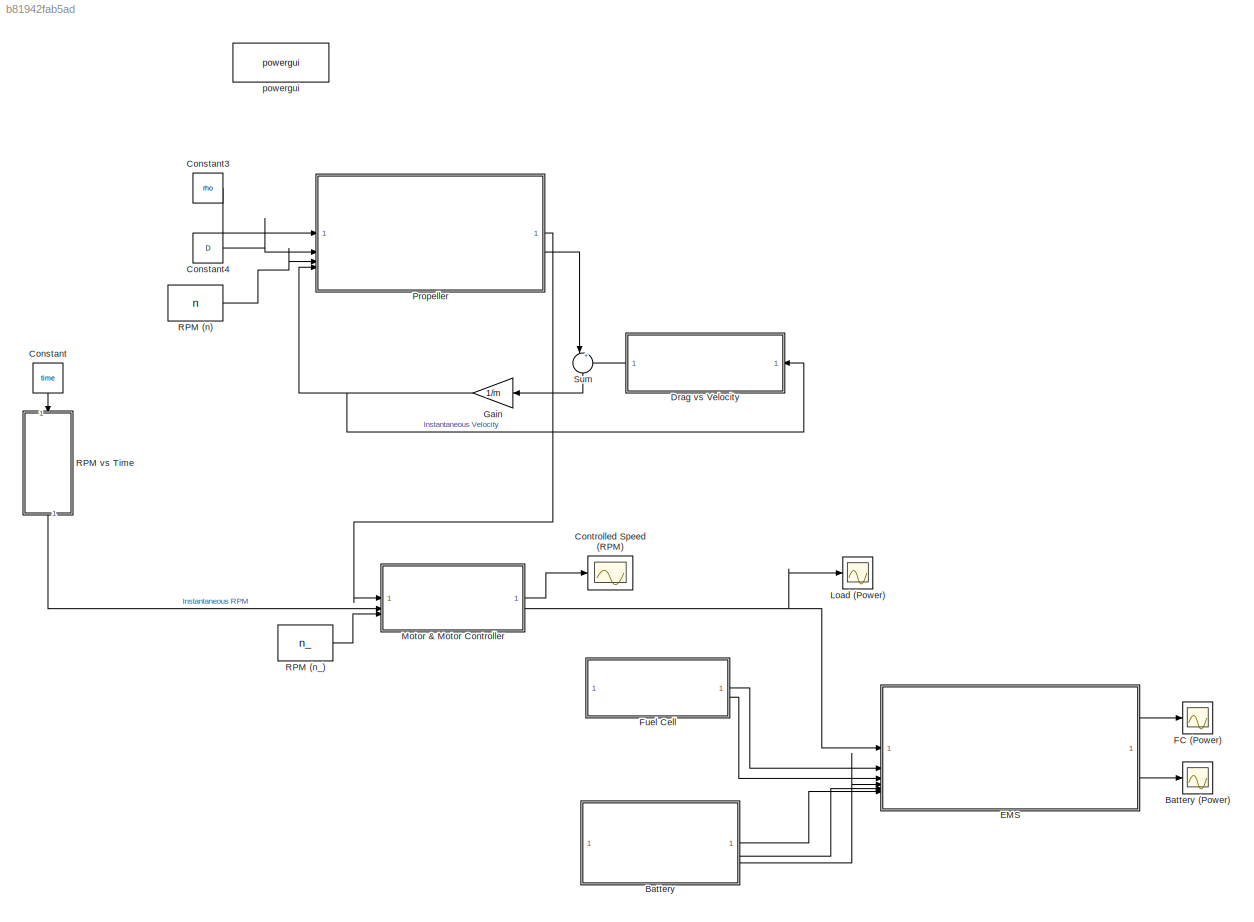
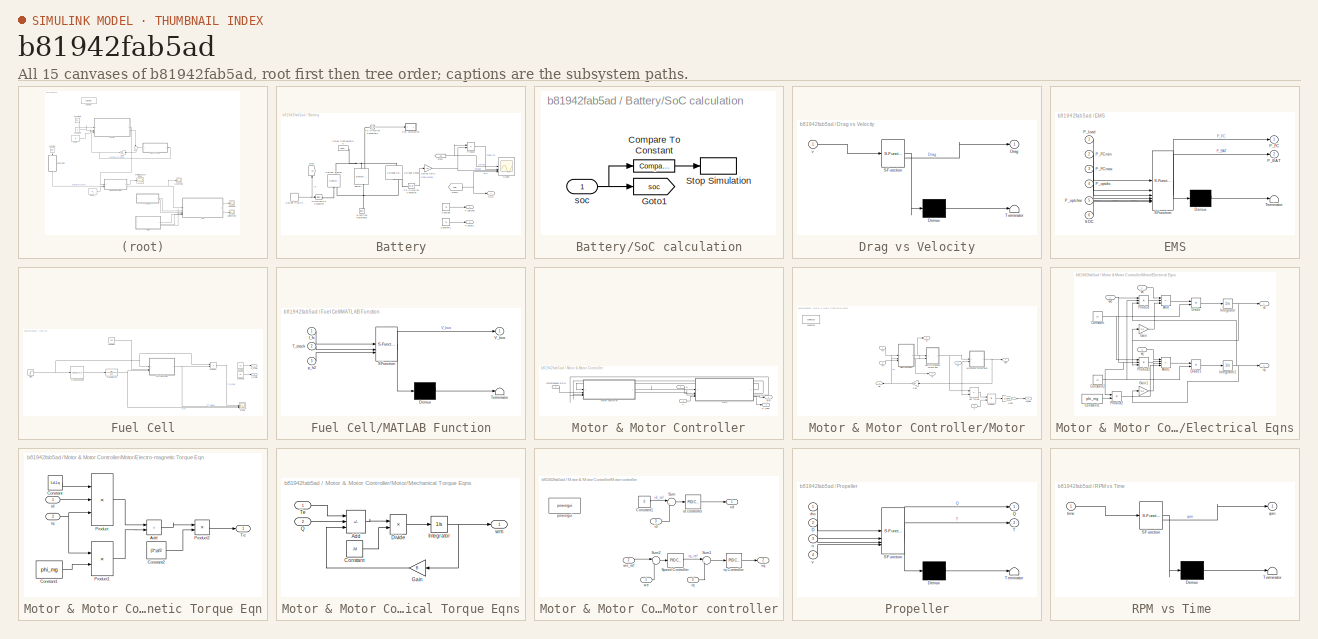
[diagram: thumbnail index - all 15 canvases of the model, root first then tree order]
MODEL slx_b81942fab5ad
KIND model
CONFIG AbsTol = auto
CONFIG EnableMultiTasking = off
CONFIG FixedStep = auto
CONFIG MaxStep = auto
CONFIG MinStep = auto
CONFIG RelTol = 1e-3
CONFIG SampleTimeConstraint = Unconstrained
CONFIG SolverName = VariableStepAuto
CONFIG StartTime = 0.0
CONFIG StopTime = 100
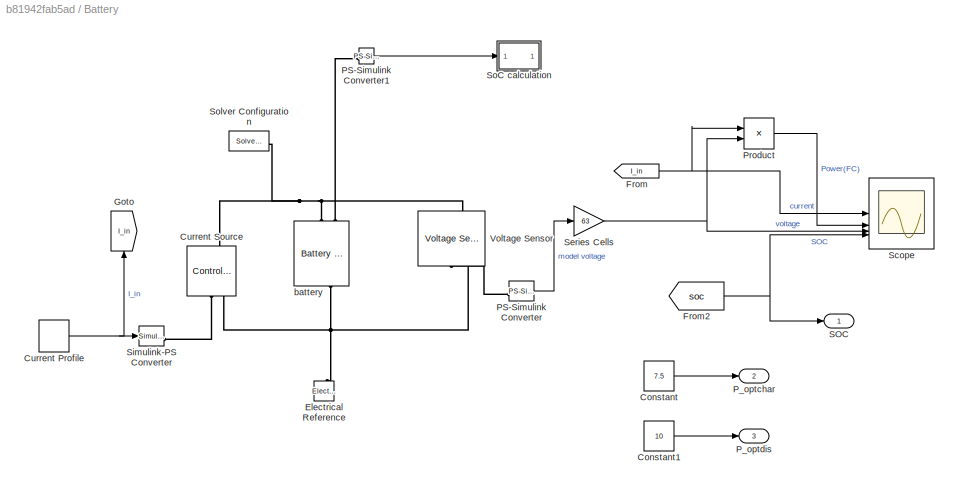
BLOCK [SubSystem] Battery
BLOCK [Scope] Battery (Power)
  Floating = off
  NumInputPorts = 1
  ScopeSpecificationString = Simulink.scopes.TimeScopeBlockCfg('CurrentConfiguration', extmgr.ConfigurationSet(extmgr.Configuration('Core','General UI',true),extmgr.Configuration('Core','Source UI',true),extmgr.Configuration('Sources','WiredSimulink',true,'DataLoggingVariableName','ScopeData2'),extmgr.Configuration('Visuals','Time Domain',true,'SerializedDisplays',{struct('MinYLimReal','-126833.70267','MaxYLimReal','1141763.3...<+2412ch>
BLOCK [Constant] Battery/Constant
  Value = 7.5
BLOCK [Constant] Battery/Constant1
  Value = 10
BLOCK [DiscretePulseGenerator] Battery/Current Profile
  Amplitude = -30
  Period = 20
  PhaseDelay = 10
  PulseType = Time based
  PulseWidth = 30
BLOCK [Reference] Battery/Current Source  REF=fl_lib/Electrical/Electrical Sources/Controlled Current
Source
  NameLocation = left
  SourceBlock = fl_lib/Electrical/Electrical Sources/Controlled Current\nSource
  SourceType = Controlled Current\nSource
BLOCK [Reference] Battery/Electrical Reference  REF=fl_lib/Electrical/Electrical Elements/Electrical Reference
  NameLocation = right
  SourceBlock = fl_lib/Electrical/Electrical Elements/Electrical Reference
  SourceType = Electrical Reference
BLOCK [From] Battery/From
  GotoTag = I_in
BLOCK [From] Battery/From2
  GotoTag = soc
  TagVisibility = global
BLOCK [Goto] Battery/Goto
  GotoTag = I_in
  NameLocation = right
BLOCK [Reference] Battery/PS-Simulink Converter  REF=nesl_utility/PS-Simulink
Converter
  SourceBlock = nesl_utility/PS-Simulink\nConverter
  SourceType = PS-Simulink\nConverter
BLOCK [Reference] Battery/PS-Simulink Converter1  REF=nesl_utility/PS-Simulink
Converter
  SourceBlock = nesl_utility/PS-Simulink\nConverter
  SourceType = PS-Simulink\nConverter
BLOCK [Outport] Battery/P_optchar
  Port = 2
BLOCK [Outport] Battery/P_optdis
  Port = 3
BLOCK [Product] Battery/Product
BLOCK [Outport] Battery/SOC
BLOCK [Scope] Battery/Scope
  Floating = off
  NumInputPorts = 4
  ScopeSpecificationString = Simulink.scopes.TimeScopeBlockCfg('CurrentConfiguration', extmgr.ConfigurationSet(extmgr.Configuration('Core','General UI',true),extmgr.Configuration('Core','Source UI',true),extmgr.Configuration('Sources','WiredSimulink',true,'DataLoggingVariableName','ScopeData1'),extmgr.Configuration('Visuals','Time Domain',true,'SerializedDisplays',{struct('MinYLimReal','-33.75','MaxYLimReal','3.75','YLabelRea...<+2699ch>
BLOCK [Gain] Battery/Series Cells
  Gain = 63
BLOCK [Reference] Battery/Simulink-PS Converter  REF=nesl_utility/Simulink-PS
Converter
  SourceBlock = nesl_utility/Simulink-PS\nConverter
  SourceType = Simulink-PS\nConverter
BLOCK [SubSystem] Battery/SoC calculation
BLOCK [Reference] Battery/SoC calculation/Compare To Constant  REF=simulink/Logic and Bit
Operations/Compare
To Constant
  SourceBlock = simulink/Logic and Bit\nOperations/Compare\nTo Constant
  SourceType = Compare To Constant
BLOCK [Goto] Battery/SoC calculation/Goto1
  GotoTag = soc
  TagVisibility = global
BLOCK [Stop] Battery/SoC calculation/Stop Simulation
BLOCK [Inport] Battery/SoC calculation/soc
BLOCK [Reference] Battery/Solver Configuration  REF=nesl_utility/Solver
Configuration
  SourceBlock = nesl_utility/Solver\nConfiguration
  SourceType = Solver\nConfiguration
BLOCK [Reference] Battery/Voltage Sensor  REF=fl_lib/Electrical/Electrical Sensors/Voltage Sensor
  NameLocation = right
  SourceBlock = fl_lib/Electrical/Electrical Sensors/Voltage Sensor
  SourceType = Voltage Sensor
BLOCK [Reference] Battery/battery  REF=batteryecm_lib/Battery
(Table-Based)
  LibrarySourceBlock = ee_lib/Sources/Battery\n(Table-Based)
  NameLocation = left
  SourceBlock = batteryecm_lib/Battery\n(Table-Based)
  SourceType = Battery\n(Table-Based)
BLOCK [Constant] Constant
  NameLocation = left
  Value = time
BLOCK [Constant] Constant3
  Value = rho
BLOCK [Constant] Constant4
  Value = D
BLOCK [Scope] Controlled Speed (RPM)
  Floating = off
  NumInputPorts = 1
  ScopeSpecificationString = Simulink.scopes.TimeScopeBlockCfg('CurrentConfiguration', extmgr.ConfigurationSet(extmgr.Configuration('Core','General UI',true),extmgr.Configuration('Core','Source UI',true),extmgr.Configuration('Sources','WiredSimulink',true),extmgr.Configuration('Visuals','Time Domain',true,'SerializedDisplays',{struct('MinYLimReal','-24777363182.60897','MaxYLimReal','2753040353.62322','YLabelReal','','MinYLimM...<+3389ch>
BLOCK [SubSystem] Drag vs Velocity
  ErrorFcn = Stateflow.Translate.translate
  LibrarySourceBlock = simulink/User-Defined\nFunctions/MATLAB Function
  PermitHierarchicalResolution = ExplicitOnly
  SFBlockType = MATLAB Function
  TreatAsAtomicUnit = on
BLOCK [Demux] Drag vs Velocity/ Demux 
  Outputs = 1
BLOCK [S-Function] Drag vs Velocity/ SFunction 
  EnableBusSupport = on
  FunctionName = sf_sfun
  PortCounts = [1 2]
  SFcnIsStateOwnerBlock = off
  SFunctionDeploymentMode = off
  Tag = Stateflow S-Function 4
BLOCK [Terminator] Drag vs Velocity/ Terminator 
BLOCK [Outport] Drag vs Velocity/Drag
BLOCK [Inport] Drag vs Velocity/v
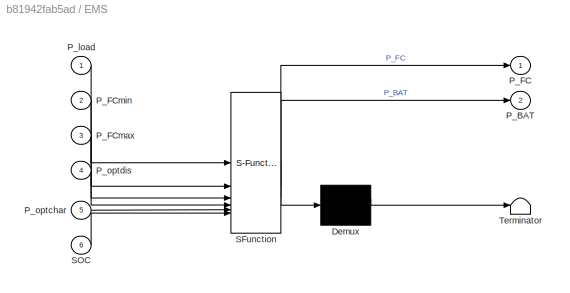
BLOCK [SubSystem] EMS
  ErrorFcn = Stateflow.Translate.translate
  LibrarySourceBlock = simulink/User-Defined\nFunctions/MATLAB Function
  PermitHierarchicalResolution = ExplicitOnly
  SFBlockType = MATLAB Function
  TreatAsAtomicUnit = on
BLOCK [Demux] EMS/ Demux 
  Outputs = 1
BLOCK [S-Function] EMS/ SFunction 
  EnableBusSupport = on
  FunctionName = sf_sfun
  PortCounts = [6 3]
  SFcnIsStateOwnerBlock = off
  SFunctionDeploymentMode = off
  Tag = Stateflow S-Function 1
BLOCK [Terminator] EMS/ Terminator 
BLOCK [Outport] EMS/P_BAT
  Port = 2
BLOCK [Outport] EMS/P_FC
BLOCK [Inport] EMS/P_FCmax
  Port = 3
BLOCK [Inport] EMS/P_FCmin
  Port = 2
BLOCK [Inport] EMS/P_load
BLOCK [Inport] EMS/P_optchar
  Port = 5
BLOCK [Inport] EMS/P_optdis
  Port = 4
BLOCK [Inport] EMS/SOC
  Port = 6
BLOCK [Scope] FC (Power)
  Floating = off
  NumInputPorts = 1
  ScopeSpecificationString = Simulink.scopes.TimeScopeBlockCfg('CurrentConfiguration', extmgr.ConfigurationSet(extmgr.Configuration('Core','General UI',true),extmgr.Configuration('Core','Source UI',true),extmgr.Configuration('Sources','WiredSimulink',true,'DataLoggingVariableName','ScopeData1'),extmgr.Configuration('Visuals','Time Domain',true,'SerializedDisplays',{struct('MinYLimReal','15.47058','MaxYLimReal','29.79361','YLa...<+2268ch>
BLOCK [SubSystem] Fuel Cell
BLOCK [Lookup_n-D] Fuel Cell/1-D Lookup Table
  BreakpointsForDimension1 = I_P_TLU.Current
  InputPortMap = u0
  InternalRulePriority = Speed
  NumberOfTableDimensions = 1
  RndMeth = Simplest
  Table = I_P_TLU.Pressure
BLOCK [Constant] Fuel Cell/Constant
  Value = 353
BLOCK [Constant] Fuel Cell/Constant1
  Value = 38
BLOCK [Constant] Fuel Cell/Constant2
  Value = 26
BLOCK [SubSystem] Fuel Cell/MATLAB Function
  ErrorFcn = Stateflow.Translate.translate
  LibrarySourceBlock = simulink/User-Defined\nFunctions/MATLAB Function
  PermitHierarchicalResolution = ExplicitOnly
  SFBlockType = MATLAB Function
  TreatAsAtomicUnit = on
BLOCK [Demux] Fuel Cell/MATLAB Function/ Demux 
  Outputs = 1
BLOCK [S-Function] Fuel Cell/MATLAB Function/ SFunction 
  EnableBusSupport = on
  FunctionName = sf_sfun
  PortCounts = [3 2]
  SFcnIsStateOwnerBlock = off
  SFunctionDeploymentMode = off
  Tag = Stateflow S-Function 3
BLOCK [Terminator] Fuel Cell/MATLAB Function/ Terminator 
BLOCK [Inport] Fuel Cell/MATLAB Function/I_fc
BLOCK [Inport] Fuel Cell/MATLAB Function/T_stack
  Port = 2
BLOCK [Outport] Fuel Cell/MATLAB Function/V_bus
BLOCK [Inport] Fuel Cell/MATLAB Function/p_h2
  Port = 3
BLOCK [Outport] Fuel Cell/P_FCmax
  Port = 2
BLOCK [Outport] Fuel Cell/P_FCmin
BLOCK [Product] Fuel Cell/Product
BLOCK [Scope] Fuel Cell/Scope
  Floating = off
  NumInputPorts = 3
  ScopeSpecificationString = Simulink.scopes.TimeScopeBlockCfg('CurrentConfiguration', extmgr.ConfigurationSet(extmgr.Configuration('Core','General UI',true),extmgr.Configuration('Core','Source UI',true),extmgr.Configuration('Sources','WiredSimulink',true,'DataLoggingVariableName','ScopeData2'),extmgr.Configuration('Visuals','Time Domain',true,'SerializedDisplays',{struct('MinYLimReal','-3761.15146','MaxYLimReal','43195.72252...<+2767ch>
BLOCK [Step] Fuel Cell/Step
  After = 154
  Before = 107
  SampleTime = 0
  Time = 15
BLOCK [TransferFcn] Fuel Cell/Transfer Fcn
  Denominator = [1 1]
BLOCK [Gain] Gain
  Gain = 1/m
  NameLocation = top
BLOCK [Scope] Load (Power)
  Floating = off
  NumInputPorts = 1
  ScopeSpecificationString = Simulink.scopes.TimeScopeBlockCfg('CurrentConfiguration', extmgr.ConfigurationSet(extmgr.Configuration('Core','General UI',true),extmgr.Configuration('Core','Source UI',true),extmgr.Configuration('Sources','WiredSimulink',true,'DataLoggingVariableName','ScopeData3'),extmgr.Configuration('Visuals','Time Domain',true,'SerializedDisplays',{struct('MinYLimReal','-1141743384.37399','MaxYLimReal','12686...<+3441ch>
BLOCK [SubSystem] Motor & Motor Controller
BLOCK [Inport] Motor & Motor Controller/Instantaneous RPM
  Port = 2
BLOCK [SubSystem] Motor & Motor Controller/Motor
BLOCK [SubSystem] Motor & Motor Controller/Motor controller
BLOCK [Constant] Motor & Motor Controller/Motor controller/Constant1
  Value = 0
BLOCK [Reference] Motor & Motor Controller/Motor controller/Speed Controller  REF=slpidlib/PID Controller
  LibrarySourceBlock = simulink/Continuous/PID Controller
  SourceBlock = slpidlib/PID Controller
  SourceType = PID 1dof
BLOCK [Sum] Motor & Motor Controller/Motor controller/Sum
  Inputs = |+-
BLOCK [Sum] Motor & Motor Controller/Motor controller/Sum1
  Inputs = |+-
BLOCK [Sum] Motor & Motor Controller/Motor controller/Sum2
  Inputs = |+-
BLOCK [Inport] Motor & Motor Controller/Motor controller/id
  Port = 3
BLOCK [Reference] Motor & Motor Controller/Motor controller/id controller  REF=slpidlib/PID Controller
  LibrarySourceBlock = simulink/Continuous/PID Controller
  SourceBlock = slpidlib/PID Controller
  SourceType = PID 1dof
BLOCK [Inport] Motor & Motor Controller/Motor controller/iq
  Port = 4
BLOCK [Reference] Motor & Motor Controller/Motor controller/iq Controller  REF=slpidlib/PID Controller
  LibrarySourceBlock = simulink/Continuous/PID Controller
  SourceBlock = slpidlib/PID Controller
  SourceType = PID 1dof
BLOCK [Reference] Motor & Motor Controller/Motor controller/powergui  REF=spspowerguiLib/powergui
  LibrarySourceBlock = sps_lib/powergui
  Priority = 1
  SourceBlock = spspowerguiLib/powergui
  SourceType = PSB option menu block
BLOCK [Outport] Motor & Motor Controller/Motor controller/vd
BLOCK [Outport] Motor & Motor Controller/Motor controller/vq
  Port = 2
BLOCK [Inport] Motor & Motor Controller/Motor controller/we
BLOCK [Inport] Motor & Motor Controller/Motor controller/we_ref
  Port = 2
BLOCK [SubSystem] Motor & Motor Controller/Motor/Electrical Eqns
BLOCK [Sum] Motor & Motor Controller/Motor/Electrical Eqns/Add
  IconShape = rectangular
  Inputs = ++-
BLOCK [Sum] Motor & Motor Controller/Motor/Electrical Eqns/Add1
  IconShape = rectangular
  Inputs = +---
BLOCK [Constant] Motor & Motor Controller/Motor/Electrical Eqns/Constant
  Value = Ld
BLOCK [Constant] Motor & Motor Controller/Motor/Electrical Eqns/Constant1
  Value = phi_mg
BLOCK [Constant] Motor & Motor Controller/Motor/Electrical Eqns/Constant2
  Value = Lq
BLOCK [Product] Motor & Motor Controller/Motor/Electrical Eqns/Divide
  Inputs = */
BLOCK [Product] Motor & Motor Controller/Motor/Electrical Eqns/Divide1
  Inputs = */
BLOCK [Gain] Motor & Motor Controller/Motor/Electrical Eqns/Gain
  Gain = Rs
BLOCK [Gain] Motor & Motor Controller/Motor/Electrical Eqns/Gain1
  Gain = Rs
BLOCK [Integrator] Motor & Motor Controller/Motor/Electrical Eqns/Integrator
BLOCK [Integrator] Motor & Motor Controller/Motor/Electrical Eqns/Integrator1
BLOCK [Product] Motor & Motor Controller/Motor/Electrical Eqns/Product
  Inputs = 3
BLOCK [Product] Motor & Motor Controller/Motor/Electrical Eqns/Product1
  Inputs = 3
BLOCK [Product] Motor & Motor Controller/Motor/Electrical Eqns/Product2
BLOCK [Outport] Motor & Motor Controller/Motor/Electrical Eqns/id
BLOCK [Outport] Motor & Motor Controller/Motor/Electrical Eqns/iq
  Port = 2
BLOCK [Inport] Motor & Motor Controller/Motor/Electrical Eqns/vd
BLOCK [Inport] Motor & Motor Controller/Motor/Electrical Eqns/vq
  Port = 3
BLOCK [Inport] Motor & Motor Controller/Motor/Electrical Eqns/we
  Port = 2
BLOCK [SubSystem] Motor & Motor Controller/Motor/Electro-magnetic Torque Eqn
BLOCK [Sum] Motor & Motor Controller/Motor/Electro-magnetic Torque Eqn/Add
  IconShape = rectangular
BLOCK [Constant] Motor & Motor Controller/Motor/Electro-magnetic Torque Eqn/Constant
  Value = Ld-Lq
BLOCK [Constant] Motor & Motor Controller/Motor/Electro-magnetic Torque Eqn/Constant1
  Value = phi_mg
BLOCK [Constant] Motor & Motor Controller/Motor/Electro-magnetic Torque Eqn/Constant2
  Value = (3*p)/2
BLOCK [Product] Motor & Motor Controller/Motor/Electro-magnetic Torque Eqn/Product
  Inputs = 3
BLOCK [Product] Motor & Motor Controller/Motor/Electro-magnetic Torque Eqn/Product1
BLOCK [Product] Motor & Motor Controller/Motor/Electro-magnetic Torque Eqn/Product2
BLOCK [Outport] Motor & Motor Controller/Motor/Electro-magnetic Torque Eqn/Te
BLOCK [Inport] Motor & Motor Controller/Motor/Electro-magnetic Torque Eqn/id
BLOCK [Inport] Motor & Motor Controller/Motor/Electro-magnetic Torque Eqn/iq
  Port = 2
BLOCK [Gain] Motor & Motor Controller/Motor/Gain
  Gain = p/2
BLOCK [Gain] Motor & Motor Controller/Motor/Gain1
  Gain = 1/9548.8
BLOCK [SubSystem] Motor & Motor Controller/Motor/Mechanical Torque Eqns
BLOCK [Sum] Motor & Motor Controller/Motor/Mechanical Torque Eqns/Add
  IconShape = rectangular
  Inputs = +--
BLOCK [Constant] Motor & Motor Controller/Motor/Mechanical Torque Eqns/Constant
  Value = Jd
BLOCK [Product] Motor & Motor Controller/Motor/Mechanical Torque Eqns/Divide
  Inputs = */
BLOCK [Gain] Motor & Motor Controller/Motor/Mechanical Torque Eqns/Gain
  Gain = B
  NameLocation = top
BLOCK [Integrator] Motor & Motor Controller/Motor/Mechanical Torque Eqns/Integrator
BLOCK [Inport] Motor & Motor Controller/Motor/Mechanical Torque Eqns/Q
  Port = 2
BLOCK [Inport] Motor & Motor Controller/Motor/Mechanical Torque Eqns/Te
BLOCK [Outport] Motor & Motor Controller/Motor/Mechanical Torque Eqns/wm
BLOCK [Sum] Motor & Motor Controller/Motor/Net Torque
  IconShape = rectangular
  Inputs = +-
BLOCK [Outport] Motor & Motor Controller/Motor/P_load
  Port = 5
BLOCK [Product] Motor & Motor Controller/Motor/Product
BLOCK [Inport] Motor & Motor Controller/Motor/Q
  Port = 2
BLOCK [Outport] Motor & Motor Controller/Motor/id
  Port = 2
BLOCK [Outport] Motor & Motor Controller/Motor/iq
  Port = 3
BLOCK [Inport] Motor & Motor Controller/Motor/n
  Port = 4
BLOCK [Reference] Motor & Motor Controller/Motor/powergui  REF=spspowerguiLib/powergui
  LibrarySourceBlock = sps_lib/powergui
  Priority = 1
  SourceBlock = spspowerguiLib/powergui
  SourceType = PSB option menu block
BLOCK [Inport] Motor & Motor Controller/Motor/vd
BLOCK [Inport] Motor & Motor Controller/Motor/vq
  Port = 3
BLOCK [Outport] Motor & Motor Controller/Motor/we
  NameLocation = top
BLOCK [Outport] Motor & Motor Controller/Motor/wm
  Port = 4
BLOCK [Outport] Motor & Motor Controller/P_load
  Port = 2
BLOCK [Inport] Motor & Motor Controller/Q
BLOCK [Inport] Motor & Motor Controller/n
  Port = 3
BLOCK [Outport] Motor & Motor Controller/wm
BLOCK [SubSystem] Propeller
  ErrorFcn = Stateflow.Translate.translate
  LibrarySourceBlock = simulink/User-Defined\nFunctions/MATLAB Function
  PermitHierarchicalResolution = ExplicitOnly
  SFBlockType = MATLAB Function
  TreatAsAtomicUnit = on
BLOCK [Demux] Propeller/ Demux 
  Outputs = 1
BLOCK [S-Function] Propeller/ SFunction 
  EnableBusSupport = on
  FunctionName = sf_sfun
  PortCounts = [4 3]
  SFcnIsStateOwnerBlock = off
  SFunctionDeploymentMode = off
  Tag = Stateflow S-Function 2
BLOCK [Terminator] Propeller/ Terminator 
BLOCK [Inport] Propeller/D
  Port = 2
BLOCK [Outport] Propeller/Q
BLOCK [Outport] Propeller/T
  Port = 2
BLOCK [Inport] Propeller/n
  Port = 3
BLOCK [Inport] Propeller/rho
BLOCK [Inport] Propeller/v
  Port = 4
BLOCK [Constant] RPM (n)
  Value = n
BLOCK [Constant] RPM (n_)
  Value = n_
BLOCK [SubSystem] RPM vs Time 
  ErrorFcn = Stateflow.Translate.translate
  LibrarySourceBlock = simulink/User-Defined\nFunctions/MATLAB Function
  NameLocation = left
  PermitHierarchicalResolution = ExplicitOnly
  SFBlockType = MATLAB Function
  TreatAsAtomicUnit = on
BLOCK [Demux] RPM vs Time / Demux 
  Outputs = 1
BLOCK [S-Function] RPM vs Time / SFunction 
  EnableBusSupport = on
  FunctionName = sf_sfun
  PortCounts = [1 2]
  SFcnIsStateOwnerBlock = off
  SFunctionDeploymentMode = off
  Tag = Stateflow S-Function 5
BLOCK [Terminator] RPM vs Time / Terminator 
BLOCK [Outport] RPM vs Time /rpm
BLOCK [Inport] RPM vs Time /time
BLOCK [Sum] Sum
  Inputs = |+-
  NameLocation = left
BLOCK [Reference] powergui  REF=spspowerguiLib/powergui
  LibrarySourceBlock = sps_lib/powergui
  Priority = 1
  SourceBlock = spspowerguiLib/powergui
  SourceType = PSB option menu block
LINE Battery/Constant1:1 -> Battery/P_optdis:1
LINE Battery/Constant:1 -> Battery/P_optchar:1
NET Battery/Current Profile:1 -> Battery/Goto:1, Battery/Simulink-PS Converter:1
NET Battery/From2:1 -> Battery/SOC:1, Battery/Scope:4
NET Battery/From:1 -> Battery/Product:1, Battery/Scope:1
LINE Battery/PS-Simulink Converter1:1 -> Battery/SoC calculation:1
LINE Battery/PS-Simulink Converter:1 -> Battery/Series Cells:1
LINE Battery/Product:1 -> Battery/Scope:2
NET Battery/Series Cells:1 -> Battery/Product:2, Battery/Scope:3
LINE Battery/SoC calculation/Compare To Constant:1 -> Battery/SoC calculation/Stop Simulation:1
NET Battery/SoC calculation/soc:1 -> Battery/SoC calculation/Compare To Constant:1, Battery/SoC calculation/Goto1:1
LINE Battery:1 -> EMS:6
LINE Battery:2 -> EMS:5
LINE Battery:3 -> EMS:4
LINE Constant3:1 -> Propeller:1
LINE Constant4:1 -> Propeller:2
LINE Constant:1 -> RPM vs Time :1
LINE Drag vs Velocity:1 -> Sum:2
LINE EMS:1 -> FC (Power):1
LINE EMS:2 -> Battery (Power):1
LINE Fuel Cell/1-D Lookup Table:1 -> Fuel Cell/Transfer Fcn:1
LINE Fuel Cell/Constant1:1 -> Fuel Cell/P_FCmax:1
LINE Fuel Cell/Constant2:1 -> Fuel Cell/P_FCmin:1
LINE Fuel Cell/Constant:1 -> Fuel Cell/MATLAB Function:2
NET Fuel Cell/MATLAB Function:1 -> Fuel Cell/Product:2, Fuel Cell/Scope:2
LINE Fuel Cell/Product:1 -> Fuel Cell/Scope:1
NET Fuel Cell/Step:1 -> Fuel Cell/1-D Lookup Table:1, Fuel Cell/MATLAB Function:1, Fuel Cell/Product:1
NET Fuel Cell/Transfer Fcn:1 -> Fuel Cell/MATLAB Function:3, Fuel Cell/Scope:3
LINE Fuel Cell:1 -> EMS:2
LINE Fuel Cell:2 -> EMS:3
NET Gain:1 -> Drag vs Velocity:1, Propeller:4
LINE Motor & Motor Controller/Instantaneous RPM:1 -> Motor & Motor Controller/Motor controller:2
LINE Motor & Motor Controller/Motor controller/Constant1:1 -> Motor & Motor Controller/Motor controller/Sum:1
LINE Motor & Motor Controller/Motor controller/Speed Controller:1 -> Motor & Motor Controller/Motor controller/Sum1:1
LINE Motor & Motor Controller/Motor controller/Sum1:1 -> Motor & Motor Controller/Motor controller/iq Controller:1
LINE Motor & Motor Controller/Motor controller/Sum2:1 -> Motor & Motor Controller/Motor controller/Speed Controller:1
LINE Motor & Motor Controller/Motor controller/Sum:1 -> Motor & Motor Controller/Motor controller/id controller:1
LINE Motor & Motor Controller/Motor controller/id controller:1 -> Motor & Motor Controller/Motor controller/vd:1
LINE Motor & Motor Controller/Motor controller/id:1 -> Motor & Motor Controller/Motor controller/Sum:2
LINE Motor & Motor Controller/Motor controller/iq Controller:1 -> Motor & Motor Controller/Motor controller/vq:1
LINE Motor & Motor Controller/Motor controller/iq:1 -> Motor & Motor Controller/Motor controller/Sum1:2
LINE Motor & Motor Controller/Motor controller/we:1 -> Motor & Motor Controller/Motor controller/Sum2:2
LINE Motor & Motor Controller/Motor controller/we_ref:1 -> Motor & Motor Controller/Motor controller/Sum2:1
LINE Motor & Motor Controller/Motor controller:1 -> Motor & Motor Controller/Motor:1
LINE Motor & Motor Controller/Motor controller:2 -> Motor & Motor Controller/Motor:3
LINE Motor & Motor Controller/Motor/Electrical Eqns/Add1:1 -> Motor & Motor Controller/Motor/Electrical Eqns/Divide1:1
LINE Motor & Motor Controller/Motor/Electrical Eqns/Add:1 -> Motor & Motor Controller/Motor/Electrical Eqns/Divide:1
LINE Motor & Motor Controller/Motor/Electrical Eqns/Constant1:1 -> Motor & Motor Controller/Motor/Electrical Eqns/Product2:2
NET Motor & Motor Controller/Motor/Electrical Eqns/Constant2:1 -> Motor & Motor Controller/Motor/Electrical Eqns/Divide1:2, Motor & Motor Controller/Motor/Electrical Eqns/Product:2
NET Motor & Motor Controller/Motor/Electrical Eqns/Constant:1 -> Motor & Motor Controller/Motor/Electrical Eqns/Divide:2, Motor & Motor Controller/Motor/Electrical Eqns/Product1:1
LINE Motor & Motor Controller/Motor/Electrical Eqns/Divide1:1 -> Motor & Motor Controller/Motor/Electrical Eqns/Integrator1:1
LINE Motor & Motor Controller/Motor/Electrical Eqns/Divide:1 -> Motor & Motor Controller/Motor/Electrical Eqns/Integrator:1
LINE Motor & Motor Controller/Motor/Electrical Eqns/Gain1:1 -> Motor & Motor Controller/Motor/Electrical Eqns/Add1:3
LINE Motor & Motor Controller/Motor/Electrical Eqns/Gain:1 -> Motor & Motor Controller/Motor/Electrical Eqns/Add:3
NET Motor & Motor Controller/Motor/Electrical Eqns/Integrator1:1 -> Motor & Motor Controller/Motor/Electrical Eqns/Gain1:1, Motor & Motor Controller/Motor/Electrical Eqns/Product:3, Motor & Motor Controller/Motor/Electrical Eqns/iq:1
NET Motor & Motor Controller/Motor/Electrical Eqns/Integrator:1 -> Motor & Motor Controller/Motor/Electrical Eqns/Gain:1, Motor & Motor Controller/Motor/Electrical Eqns/Product1:3, Motor & Motor Controller/Motor/Electrical Eqns/id:1
LINE Motor & Motor Controller/Motor/Electrical Eqns/Product1:1 -> Motor & Motor Controller/Motor/Electrical Eqns/Add1:2
LINE Motor & Motor Controller/Motor/Electrical Eqns/Product2:1 -> Motor & Motor Controller/Motor/Electrical Eqns/Add1:4
LINE Motor & Motor Controller/Motor/Electrical Eqns/Product:1 -> Motor & Motor Controller/Motor/Electrical Eqns/Add:2
LINE Motor & Motor Controller/Motor/Electrical Eqns/vd:1 -> Motor & Motor Controller/Motor/Electrical Eqns/Add:1
LINE Motor & Motor Controller/Motor/Electrical Eqns/vq:1 -> Motor & Motor Controller/Motor/Electrical Eqns/Add1:1
NET Motor & Motor Controller/Motor/Electrical Eqns/we:1 -> Motor & Motor Controller/Motor/Electrical Eqns/Product1:2, Motor & Motor Controller/Motor/Electrical Eqns/Product2:1, Motor & Motor Controller/Motor/Electrical Eqns/Product:1
NET Motor & Motor Controller/Motor/Electrical Eqns:1 -> Motor & Motor Controller/Motor/Electro-magnetic Torque Eqn:1, Motor & Motor Controller/Motor/id:1
NET Motor & Motor Controller/Motor/Electrical Eqns:2 -> Motor & Motor Controller/Motor/Electro-magnetic Torque Eqn:2, Motor & Motor Controller/Motor/iq:1
LINE Motor & Motor Controller/Motor/Electro-magnetic Torque Eqn/Add:1 -> Motor & Motor Controller/Motor/Electro-magnetic Torque Eqn/Product2:1
LINE Motor & Motor Controller/Motor/Electro-magnetic Torque Eqn/Constant1:1 -> Motor & Motor Controller/Motor/Electro-magnetic Torque Eqn/Product1:2
LINE Motor & Motor Controller/Motor/Electro-magnetic Torque Eqn/Constant2:1 -> Motor & Motor Controller/Motor/Electro-magnetic Torque Eqn/Product2:2
LINE Motor & Motor Controller/Motor/Electro-magnetic Torque Eqn/Constant:1 -> Motor & Motor Controller/Motor/Electro-magnetic Torque Eqn/Product:1
LINE Motor & Motor Controller/Motor/Electro-magnetic Torque Eqn/Product1:1 -> Motor & Motor Controller/Motor/Electro-magnetic Torque Eqn/Add:2
LINE Motor & Motor Controller/Motor/Electro-magnetic Torque Eqn/Product2:1 -> Motor & Motor Controller/Motor/Electro-magnetic Torque Eqn/Te:1
LINE Motor & Motor Controller/Motor/Electro-magnetic Torque Eqn/Product:1 -> Motor & Motor Controller/Motor/Electro-magnetic Torque Eqn/Add:1
LINE Motor & Motor Controller/Motor/Electro-magnetic Torque Eqn/id:1 -> Motor & Motor Controller/Motor/Electro-magnetic Torque Eqn/Product:2
NET Motor & Motor Controller/Motor/Electro-magnetic Torque Eqn/iq:1 -> Motor & Motor Controller/Motor/Electro-magnetic Torque Eqn/Product1:1, Motor & Motor Controller/Motor/Electro-magnetic Torque Eqn/Product:3
NET Motor & Motor Controller/Motor/Electro-magnetic Torque Eqn:1 -> Motor & Motor Controller/Motor/Mechanical Torque Eqns:1, Motor & Motor Controller/Motor/Net Torque:1
LINE Motor & Motor Controller/Motor/Gain1:1 -> Motor & Motor Controller/Motor/P_load:1
NET Motor & Motor Controller/Motor/Gain:1 -> Motor & Motor Controller/Motor/Electrical Eqns:2, Motor & Motor Controller/Motor/we:1
LINE Motor & Motor Controller/Motor/Mechanical Torque Eqns/Add:1 -> Motor & Motor Controller/Motor/Mechanical Torque Eqns/Divide:1
LINE Motor & Motor Controller/Motor/Mechanical Torque Eqns/Constant:1 -> Motor & Motor Controller/Motor/Mechanical Torque Eqns/Divide:2
LINE Motor & Motor Controller/Motor/Mechanical Torque Eqns/Divide:1 -> Motor & Motor Controller/Motor/Mechanical Torque Eqns/Integrator:1
LINE Motor & Motor Controller/Motor/Mechanical Torque Eqns/Gain:1 -> Motor & Motor Controller/Motor/Mechanical Torque Eqns/Add:3
NET Motor & Motor Controller/Motor/Mechanical Torque Eqns/Integrator:1 -> Motor & Motor Controller/Motor/Mechanical Torque Eqns/Gain:1, Motor & Motor Controller/Motor/Mechanical Torque Eqns/wm:1
LINE Motor & Motor Controller/Motor/Mechanical Torque Eqns/Q:1 -> Motor & Motor Controller/Motor/Mechanical Torque Eqns/Add:2
LINE Motor & Motor Controller/Motor/Mechanical Torque Eqns/Te:1 -> Motor & Motor Controller/Motor/Mechanical Torque Eqns/Add:1
NET Motor & Motor Controller/Motor/Mechanical Torque Eqns:1 -> Motor & Motor Controller/Motor/Gain:1, Motor & Motor Controller/Motor/wm:1
LINE Motor & Motor Controller/Motor/Net Torque:1 -> Motor & Motor Controller/Motor/Product:1
LINE Motor & Motor Controller/Motor/Product:1 -> Motor & Motor Controller/Motor/Gain1:1
NET Motor & Motor Controller/Motor/Q:1 -> Motor & Motor Controller/Motor/Mechanical Torque Eqns:2, Motor & Motor Controller/Motor/Net Torque:2
LINE Motor & Motor Controller/Motor/n:1 -> Motor & Motor Controller/Motor/Product:2
LINE Motor & Motor Controller/Motor/vd:1 -> Motor & Motor Controller/Motor/Electrical Eqns:1
LINE Motor & Motor Controller/Motor/vq:1 -> Motor & Motor Controller/Motor/Electrical Eqns:3
LINE Motor & Motor Controller/Motor:1 -> Motor & Motor Controller/Motor controller:1
LINE Motor & Motor Controller/Motor:2 -> Motor & Motor Controller/Motor controller:3
LINE Motor & Motor Controller/Motor:3 -> Motor & Motor Controller/Motor controller:4
LINE Motor & Motor Controller/Motor:4 -> Motor & Motor Controller/wm:1
LINE Motor & Motor Controller/Motor:5 -> Motor & Motor Controller/P_load:1
LINE Motor & Motor Controller/Q:1 -> Motor & Motor Controller/Motor:2
LINE Motor & Motor Controller/n:1 -> Motor & Motor Controller/Motor:4
LINE Motor & Motor Controller:1 -> Controlled Speed (RPM):1
NET Motor & Motor Controller:2 -> EMS:1, Load (Power):1
LINE Propeller:1 -> Motor & Motor Controller:1
LINE Propeller:2 -> Sum:1
LINE RPM (n):1 -> Propeller:3
LINE RPM (n_):1 -> Motor & Motor Controller:3
LINE RPM vs Time :1 -> Motor & Motor Controller:2
LINE Sum:1 -> Gain:1
PNET net1: Battery/Current Source:LConn1 -- Battery/Solver Configuration:RConn1 -- Battery/Voltage Sensor:LConn1 -- Battery/battery:LConn1
PLINE Battery/Current Source:RConn1 -- Battery/Simulink-PS Converter:RConn1
PNET net2: Battery/Current Source:RConn2 -- Battery/Electrical Reference:LConn1 -- Battery/Voltage Sensor:RConn2 -- Battery/battery:RConn1
PLINE Battery/PS-Simulink Converter1:LConn1 -- Battery/battery:LConn2
PLINE Battery/PS-Simulink Converter:LConn1 -- Battery/Voltage Sensor:RConn1
note: NET lines group one-source signal fan-out (src -> all destinations, sorted); 1:1 wires keep LINE; PNET lines group multi-terminal physical nets as a canonical sorted terminal list (undirected conserving connections); 2-terminal nets keep the pairwise PLINE form
CHART EMS states=1 transitions=1
  STATE_LABEL 'eML_blk_kernel()'
  STATE_LABEL 'SCRIPT:\nfunction [P_FC,P_BAT] = EMS(P_load,P_FCmin,P_FCmax,P_optdis,P_optchar,SOC)\n    num = length(P_load);  \n    P_FC = zeros(num, 1);  \n    P_BAT = zeros(num, 1); \n    for i = 1:num\n        if SOC > 0.8 \n            if P_load(i) <= P_FCmin\n                P_FC(i) = P_FCmin;\n                P_BAT(i) = P_FCmin - P_load(i);\n            elseif P_load(i) > P_FCmin && P_load(i) <= P_FCmin + P_optdis ...<+1055ch>'
CHART Propeller states=1 transitions=1
  STATE_LABEL 'eML_blk_kernel()'
  STATE_LABEL 'SCRIPT:\nfunction [Q,T] = Prop(rho,D,n,v)\n% Ae/Ao = 1.050 ,No.of blades = 3 and P/D = 1.4 \n    J_Q = [\n    0\n    0.035633656\n    0.080186344\n    0.11803914\n    0.151453656\n    0.18931707\n    0.233837905\n    0.280588497\n    0.318451911\n    0.358534465\n    0.391948981\n    0.429780541\n    0.467633338\n    0.507694656\n    0.545547452\n    0.585619388\n    0.630140223\n    0.670222777\n    0.712513853\n    0....<+2166ch>'
CHART Fuel Cell/MATLAB Function states=1 transitions=1
  STATE_LABEL 'eML_blk_kernel()'
  STATE_LABEL 'SCRIPT:\nfunction V_bus = fcn(I_fc,T_stack,p_h2)                %T_stack in K, T_fc in A, V_bus in V\n    F = 96485.33;       \n    R = 8.31447;\n    i_lim = 1.4;\n    A_cell = 500;\n    N_cell = 300;\n\n    E_cell = -237.14e+3/(-2*F);\n    i_cell = I_fc/A_cell;\n    \n    i0 = 8e-05;\n    alpha = 0.5;\n    t_membrane = 125e-4;\n    \n    a = 0.5;\n    lambda_m = 0.043 + 17.81*a - 39.85*a^2 + 36*a^3;\n    sigma_30...<+433ch>'
CHART Drag vs Velocity states=1 transitions=1
  STATE_LABEL 'eML_blk_kernel()'
  STATE_LABEL 'SCRIPT:\nfunction Drag = DragVelocity_Profile(v)\n    Drag_ = [0\n2.40165157\n3.164117316\n3.385663625\n3.683299572\n1.921181996\n1.667962675\n1.568170036\n1.832926016\n1.978032659\n2.280974598];\n    v_ = [0\n4.545454545\n9.090909091\n13.63636364\n16.898989\n17.2020202\n22.72727273\n27.27272727\n31.81818182\n36.36363636\n40.90909091];\n    D_vfit = polyfit(v_,Drag_,1); \n    Drag = polyval(D_vfit, v);\nend'
CHART RPM vs Time  states=1 transitions=1
  STATE_LABEL 'eML_blk_kernel()'
  STATE_LABEL 'SCRIPT:\nfunction rpm = rpm_time(time)\n    time_ = [0\n1.6\n3.2\n4.8\n6.4\n8\n9.6\n11.2\n12.8\n14.4\n16\n17.6\n19.2\n20.8\n22.4\n24\n25.6\n27.2\n28.8\n30.4\n32\n33.6\n35.2\n36.8\n38.4\n40\n41.6\n43.2\n44.8\n46.4\n48\n49.6\n51.2\n52.8\n54.4\n56\n57.6\n59.2\n60.8\n62.4\n64\n65.6\n67.2\n68.8\n70.4\n72\n73.6\n75.2\n76.8\n78.4\n80\n81.6\n83.2\n84.8\n86.4\n88\n89.6\n91.2\n92.8\n94.4\n96\n97.6];\n    rpm_ = [0\n500\n500\n500\n500\n1000\n2000\n3000\n4000\n3000\n3000\n3000\n3000\n...<+394ch>'
CHART  states=0 transitions=0
CHART  states=0 transitions=0
CHART  states=0 transitions=0
CHART  states=0 transitions=0
CHART  states=0 transitions=0
